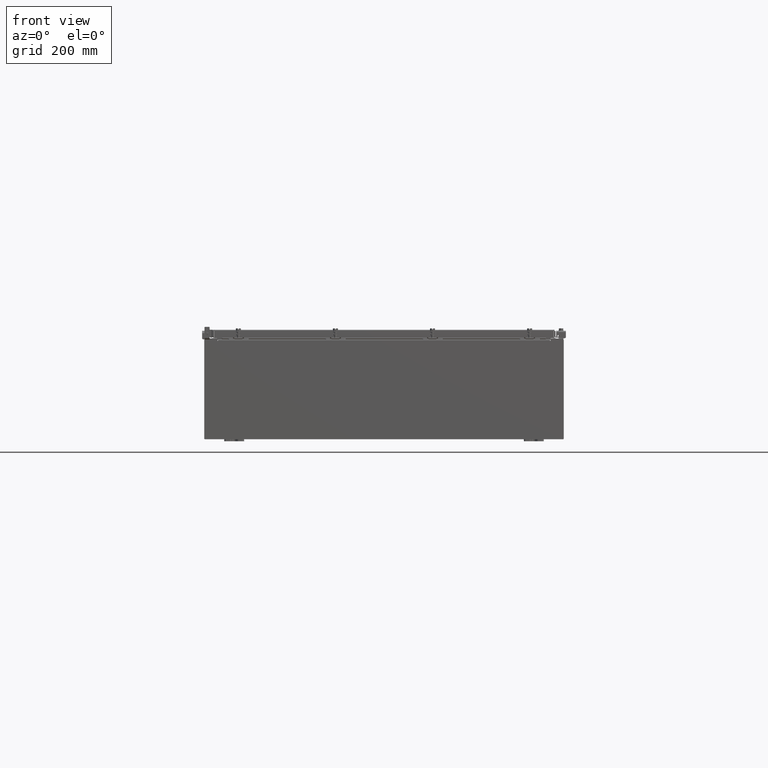
[diagram: clean part render]
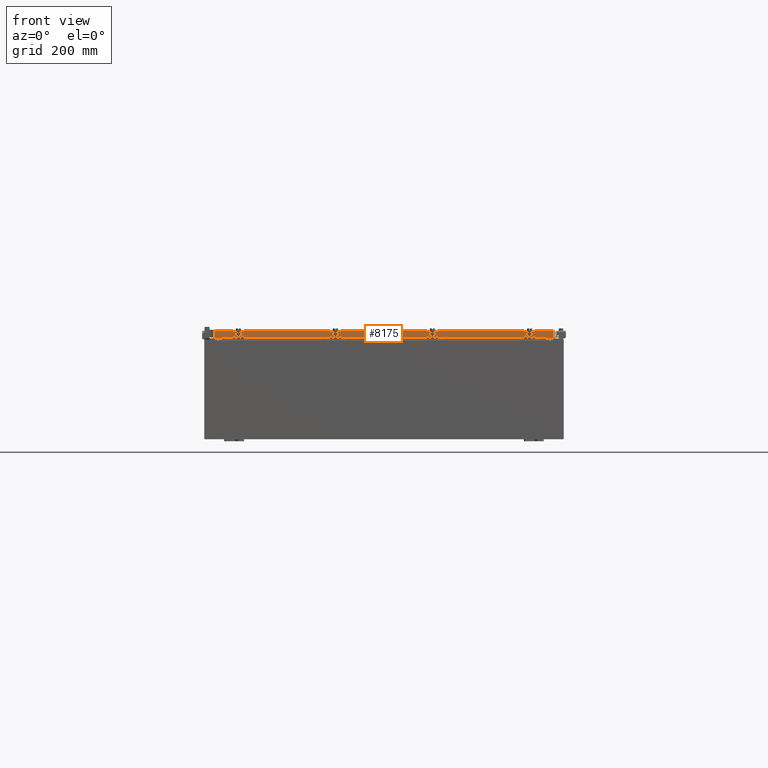
[diagram: same view with one face highlighted and labeled with its STEP entity id]
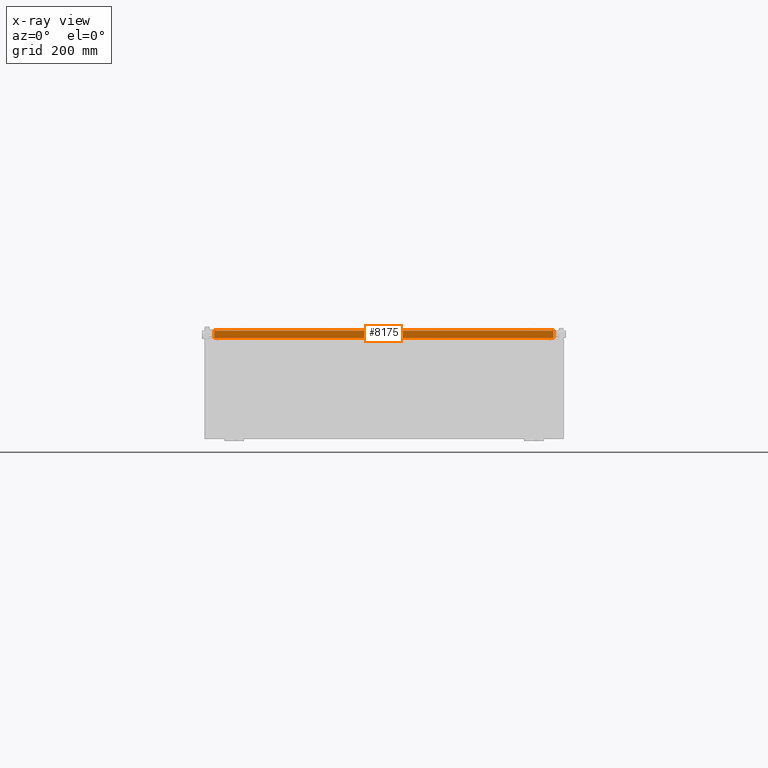
[diagram: x-ray of the same camera — body ghosted, the highlighted face saturated]
A machine part, front view. The second image highlights one B-rep face of the part: STEP entity #8175.
The next image is the same camera in x-ray: the body ghosted, the highlighted face saturated — about 0% of this face is hidden behind the body in this view.
In plain terms, the highlighted planar face has unit normal (-0, 1, -0).
Its self-contained STEP definition (entity closure, byte-faithful):
#278 = CARTESIAN_POINT ( 'NONE',  ( -16.98915786437626400, -29.09400000000000500, 1.642858579540497200E-013 ) ) ;
#350 = DIRECTION ( 'NONE',  ( -0.0000000000000000000, -5.637761885544721800E-015, -1.000000000000000000 ) ) ;
#1286 = DIRECTION ( 'NONE',  ( 0.0000000000000000000, 5.637761885544721100E-015, 1.000000000000000000 ) ) ;
#1587 = CARTESIAN_POINT ( 'NONE',  ( 17.07800000000000300, -29.09400000000000500, -0.08769999999999547600 ) ) ;
#1661 = DIRECTION ( 'NONE',  ( -6.989207801985715000E-031, 1.000000000000000000, -5.637761885544721100E-015 ) ) ;
#1950 = CARTESIAN_POINT ( 'NONE',  ( 2.033440117909724100E-029, -29.09400000000000500, 1.642858579540497200E-013 ) ) ;
#2285 = EDGE_CURVE ( 'NONE', #22064, #4091, #15508, .T. ) ;
#2346 = VECTOR ( 'NONE', #10874, 39.37007874015748100 ) ;
#3145 = PLANE ( 'NONE',  #23463 ) ;
#3756 = ORIENTED_EDGE ( 'NONE', *, *, #22968, .F. ) ;
#4091 = VERTEX_POINT ( 'NONE', #5621 ) ;
#5415 = VERTEX_POINT ( 'NONE', #13201 ) ;
#5621 = CARTESIAN_POINT ( 'NONE',  ( 16.98915786437627100, -29.09400000000000500, -0.08769999999999549000 ) ) ;
#6010 = EDGE_LOOP ( 'NONE', ( #21735, #26119, #10495, #3756, #12242, #22664 ) ) ;
#6416 = VERTEX_POINT ( 'NONE', #23398 ) ;
#6991 = CARTESIAN_POINT ( 'NONE',  ( 16.23915786437626700, -29.09400000000000800, -0.8499999999999972000 ) ) ;
#7251 = LINE ( 'NONE', #8558, #23611 ) ;
#8175 = ADVANCED_FACE ( 'NONE', ( #20750 ), #3145, .F. ) ;
#8320 = CARTESIAN_POINT ( 'NONE',  ( 16.98915786437627100, -29.09400000000000500, -0.07469999999999958600 ) ) ;
#8558 = CARTESIAN_POINT ( 'NONE',  ( 16.23915786437627100, -29.09400000000000800, -0.8499999999999972000 ) ) ;
#8788 = CARTESIAN_POINT ( 'NONE',  ( -16.98915786437626400, -29.09400000000000800, -0.8499999999999954300 ) ) ;
#9741 = VERTEX_POINT ( 'NONE', #6991 ) ;
#9918 = VERTEX_POINT ( 'NONE', #8788 ) ;
#10049 = DIRECTION ( 'NONE',  ( 1.000000000000000000, 6.989207801985715000E-031, -3.922586267643549100E-045 ) ) ;
#10495 = ORIENTED_EDGE ( 'NONE', *, *, #21877, .F. ) ;
#10584 = VECTOR ( 'NONE', #10049, 39.37007874015748100 ) ;
#10848 = EDGE_CURVE ( 'NONE', #22064, #9918, #25379, .T. ) ;
#10874 = DIRECTION ( 'NONE',  ( -1.000000000000000000, -0.0000000000000000000, 1.239713195391617100E-016 ) ) ;
#12242 = ORIENTED_EDGE ( 'NONE', *, *, #22304, .F. ) ;
#12994 = DIRECTION ( 'NONE',  ( 0.0000000000000000000, -5.637761885544721800E-015, -1.000000000000000000 ) ) ;
#13201 = CARTESIAN_POINT ( 'NONE',  ( -16.23915786437626700, -29.09400000000000800, -0.8499999999999972000 ) ) ;
#15508 = LINE ( 'NONE', #1587, #10584 ) ;
#17120 = DIRECTION ( 'NONE',  ( -1.000000000000000000, 0.0000000000000000000, 0.0000000000000000000 ) ) ;
#17138 = VECTOR ( 'NONE', #350, 39.37007874015748100 ) ;
#17678 = VECTOR ( 'NONE', #12994, 39.37007874015748100 ) ;
#18011 = EDGE_CURVE ( 'NONE', #4091, #6416, #18476, .T. ) ;
#18476 = LINE ( 'NONE', #8320, #17138 ) ;
#19275 = LINE ( 'NONE', #19286, #2346 ) ;
#19286 = CARTESIAN_POINT ( 'NONE',  ( 17.07800000000000700, -29.09400000000000800, -0.8499999999999996400 ) ) ;
#19516 = CARTESIAN_POINT ( 'NONE',  ( 17.07800000000000700, -29.09400000000000800, -0.8499999999999996400 ) ) ;
#20750 = FACE_OUTER_BOUND ( 'NONE', #6010, .T. ) ;
#20975 = VECTOR ( 'NONE', #25895, 39.37007874015748100 ) ;
#21735 = ORIENTED_EDGE ( 'NONE', *, *, #2285, .F. ) ;
#21877 = EDGE_CURVE ( 'NONE', #5415, #9918, #22328, .T. ) ;
#22064 = VERTEX_POINT ( 'NONE', #25006 ) ;
#22304 = EDGE_CURVE ( 'NONE', #6416, #9741, #19275, .T. ) ;
#22328 = LINE ( 'NONE', #19516, #20975 ) ;
#22664 = ORIENTED_EDGE ( 'NONE', *, *, #18011, .F. ) ;
#22968 = EDGE_CURVE ( 'NONE', #9741, #5415, #7251, .T. ) ;
#23398 = CARTESIAN_POINT ( 'NONE',  ( 16.98915786437627100, -29.09400000000000800, -0.8499999999999996400 ) ) ;
#23463 = AXIS2_PLACEMENT_3D ( 'NONE', #1950, #1661, #1286 ) ;
#23611 = VECTOR ( 'NONE', #17120, 39.37007874015748100 ) ;
#25006 = CARTESIAN_POINT ( 'NONE',  ( -16.98915786437626400, -29.09400000000000500, -0.08769999999999547600 ) ) ;
#25379 = LINE ( 'NONE', #278, #17678 ) ;
#25895 = DIRECTION ( 'NONE',  ( -1.000000000000000000, -0.0000000000000000000, 1.239713195391617100E-016 ) ) ;
#26119 = ORIENTED_EDGE ( 'NONE', *, *, #10848, .T. ) ;